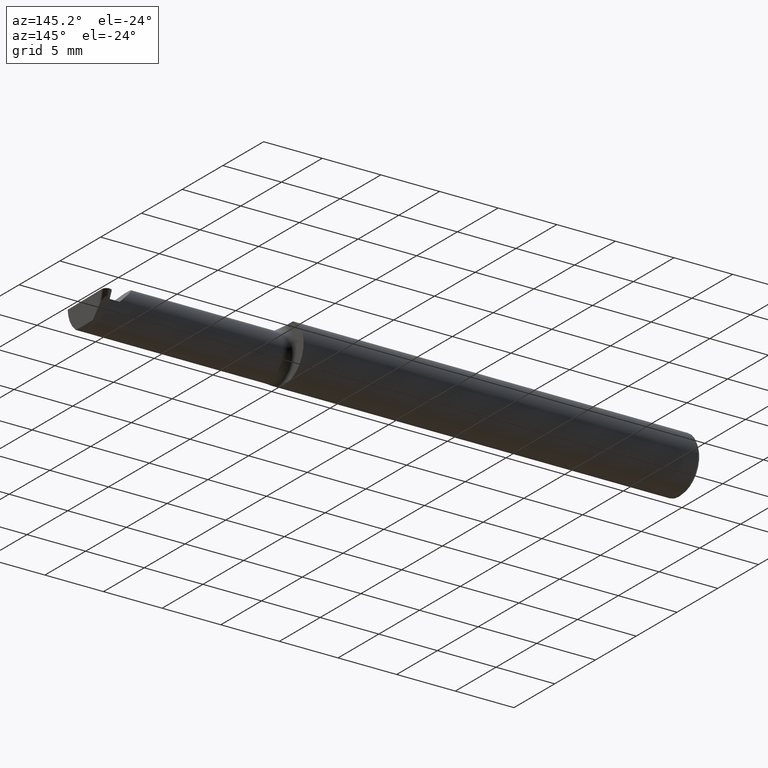
[diagram: clean part render]
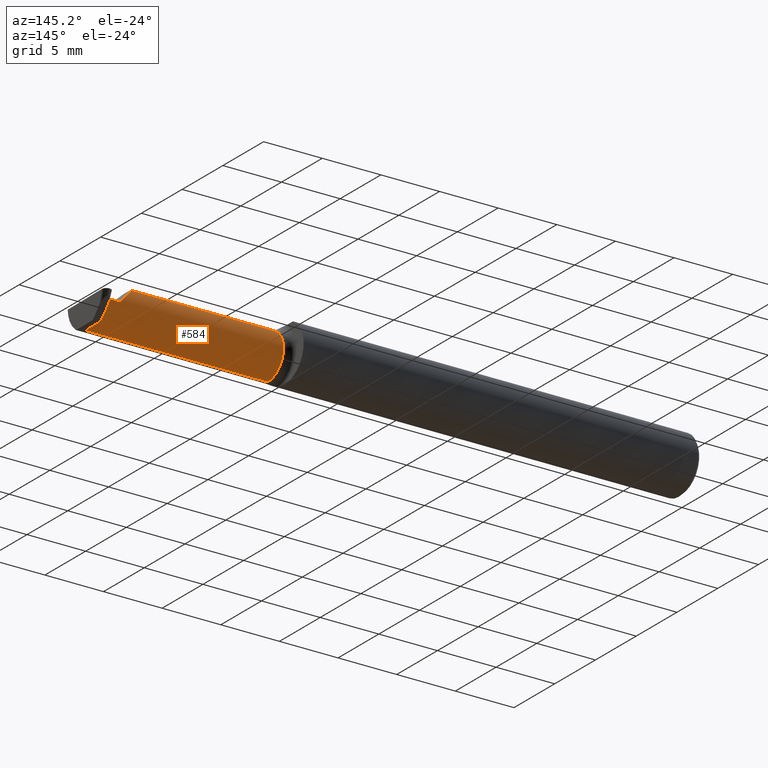
[diagram: same view with one face highlighted and labeled with its STEP entity id]
A machine part, auxiliary view. The second image highlights one B-rep face of the part: STEP entity #584.
In plain terms, the highlighted cylindrical surface (edge-blend (fillet) strip) has radius 1.905 mm, axis along (-1, -0, -0).
Its self-contained STEP definition (entity closure, byte-faithful):
#7 = VECTOR ( 'NONE', #655, 39.37007874015748143 ) ;
#26 = CARTESIAN_POINT ( 'NONE',  ( 1.359999999999999654, -0.04260000000000002673, -0.07500000000000002498 ) ) ;
#28 = CARTESIAN_POINT ( 'NONE',  ( 1.910000000000000142, 0.03239999999999997743, 8.143901214329935029E-17 ) ) ;
#36 = CARTESIAN_POINT ( 'NONE',  ( 1.964077367699730736, 0.03227820251299121090, -0.003487823687206109430 ) ) ;
#37 = CARTESIAN_POINT ( 'NONE',  ( 1.334999999999999742, -0.04260000000000003367, 0.07500000000000002498 ) ) ;
#38 = CARTESIAN_POINT ( 'NONE',  ( 1.834999999999999298, 0.001333982822017827988, 0.07500000000000002498 ) ) ;
#46 = ORIENTED_EDGE ( 'NONE', *, *, #86, .T. ) ;
#67 = DIRECTION ( 'NONE',  ( 1.000000000000000000, 0.000000000000000000, 0.000000000000000000 ) ) ;
#79 = DIRECTION ( 'NONE',  ( -1.000000000000000000, -0.000000000000000000, -0.000000000000000000 ) ) ;
#83 = VECTOR ( 'NONE', #79, 39.37007874015748143 ) ;
#86 = EDGE_CURVE ( 'NONE', #548, #541, #744, .T. ) ;
#88 = EDGE_CURVE ( 'NONE', #423, #241, #635, .T. ) ;
#91 = AXIS2_PLACEMENT_3D ( 'NONE', #512, #524, #341 ) ;
#99 = CARTESIAN_POINT ( 'NONE',  ( 1.910000000000000142, 0.03239999999999997743, 8.143901214329935029E-17 ) ) ;
#112 = CARTESIAN_POINT ( 'NONE',  ( 1.359999999999999654, -0.04260000000000003367, 0.07500000000000002498 ) ) ;
#120 = B_SPLINE_CURVE_WITH_KNOTS ( 'NONE', 3,
 ( #461, #36, #336, #271 ),
 .UNSPECIFIED., .F., .F.,
 ( 4, 4 ),
 ( 0.000000000000000000, 1.000000000000000000 ),
 .UNSPECIFIED. ) ;
#172 = LINE ( 'NONE', #37, #7 ) ;
#187 = DIRECTION ( 'NONE',  ( -1.000000000000000000, -0.000000000000000000, -0.000000000000000000 ) ) ;
#191 = CARTESIAN_POINT ( 'NONE',  ( 1.972966441847108454, -0.04260000000000003367, -0.07500000000000002498 ) ) ;
#208 = CARTESIAN_POINT ( 'NONE',  ( 1.334999999999999742, -0.04260000000000002673, -0.07500000000000002498 ) ) ;
#241 = VERTEX_POINT ( 'NONE', #26 ) ;
#271 = CARTESIAN_POINT ( 'NONE',  ( 1.964199165186739648, 0.03239999999999999825, 0.000000000000000000 ) ) ;
#279 = EDGE_LOOP ( 'NONE', ( #451, #730, #478, #791, #466, #46, #740, #363 ) ) ;
#289 = EDGE_CURVE ( 'NONE', #428, #241, #331, .T. ) ;
#299 = CARTESIAN_POINT ( 'NONE',  ( 1.834999999999999520, -0.04260000000000003367, 0.07500000000000002498 ) ) ;
#309 =( BOUNDED_CURVE ( )  B_SPLINE_CURVE ( 3, ( #525, #38, #583, #28 ),
 .UNSPECIFIED., .F., .F. ) 
 B_SPLINE_CURVE_WITH_KNOTS ( ( 4, 4 ),
 ( 0.000000000000000000, 1.570796326794896114 ),
 .UNSPECIFIED. ) 
 CURVE ( )  GEOMETRIC_REPRESENTATION_ITEM ( )  RATIONAL_B_SPLINE_CURVE ( ( 1.000000000000000000, 0.8047378541243650485, 0.8047378541243650485, 1.000000000000000000 ) ) 
 REPRESENTATION_ITEM ( '' )  );
#322 = EDGE_CURVE ( 'NONE', #611, #541, #120, .T. ) ;
#331 = CIRCLE ( 'NONE', #91, 0.07500000000000002498 ) ;
#336 = CARTESIAN_POINT ( 'NONE',  ( 1.964138266443235414, 0.03233910125649560457, -0.001743911843603054282 ) ) ;
#337 = FACE_OUTER_BOUND ( 'NONE', #279, .T. ) ;
#341 = DIRECTION ( 'NONE',  ( 0.000000000000000000, 0.000000000000000000, 1.000000000000000000 ) ) ;
#363 = ORIENTED_EDGE ( 'NONE', *, *, #371, .F. ) ;
#371 = EDGE_CURVE ( 'NONE', #725, #611, #535, .T. ) ;
#397 = CYLINDRICAL_SURFACE ( 'NONE', #514, 0.07500000000000002498 ) ;
#398 = EDGE_CURVE ( 'NONE', #412, #428, #172, .T. ) ;
#411 = CARTESIAN_POINT ( 'NONE',  ( 1.334999999999999742, 0.03221730376948593599, -0.005231735530821839987 ) ) ;
#412 = VERTEX_POINT ( 'NONE', #299 ) ;
#423 = VERTEX_POINT ( 'NONE', #191 ) ;
#428 = VERTEX_POINT ( 'NONE', #112 ) ;
#451 = ORIENTED_EDGE ( 'NONE', *, *, #718, .F. ) ;
#461 = CARTESIAN_POINT ( 'NONE',  ( 1.964016468956226502, 0.03221730376948682417, -0.005231735530809172169 ) ) ;
#466 = ORIENTED_EDGE ( 'NONE', *, *, #576, .T. ) ;
#478 = ORIENTED_EDGE ( 'NONE', *, *, #289, .F. ) ;
#499 =( BOUNDED_CURVE ( )  B_SPLINE_CURVE ( 3, ( #503, #639, #686, #698 ),
 .UNSPECIFIED., .F., .T. ) 
 B_SPLINE_CURVE_WITH_KNOTS ( ( 4, 4 ),
 ( 3.176499238629679756, 4.677482395344799926 ),
 .UNSPECIFIED. ) 
 CURVE ( )  GEOMETRIC_REPRESENTATION_ITEM ( )  RATIONAL_B_SPLINE_CURVE ( ( 1.000000000000000000, 0.8209024677461143060, 0.8209024677461143060, 1.000000000000000000 ) ) 
 REPRESENTATION_ITEM ( '' )  );
#503 = CARTESIAN_POINT ( 'NONE',  ( 1.972966441847108454, -0.04260000000000003367, -0.07500000000000002498 ) ) ;
#512 = CARTESIAN_POINT ( 'NONE',  ( 1.359999999999999654, -0.04260000000000003367, 0.000000000000000000 ) ) ;
#514 = AXIS2_PLACEMENT_3D ( 'NONE', #649, #187, #807 ) ;
#517 = VECTOR ( 'NONE', #618, 39.37007874015748143 ) ;
#524 = DIRECTION ( 'NONE',  ( -1.000000000000000000, -0.000000000000000000, -0.000000000000000000 ) ) ;
#525 = CARTESIAN_POINT ( 'NONE',  ( 1.834999999999999520, -0.04260000000000003367, 0.07500000000000002498 ) ) ;
#535 = LINE ( 'NONE', #411, #517 ) ;
#541 = VERTEX_POINT ( 'NONE', #596 ) ;
#548 = VERTEX_POINT ( 'NONE', #99 ) ;
#576 = EDGE_CURVE ( 'NONE', #412, #548, #309, .T. ) ;
#583 = CARTESIAN_POINT ( 'NONE',  ( 1.866066017177981706, 0.03239999999999996355, 0.04393398282201791544 ) ) ;
#584 = ADVANCED_FACE ( 'NONE', ( #337 ), #397, .T. ) ;
#596 = CARTESIAN_POINT ( 'NONE',  ( 1.964199165186739648, 0.03239999999999999825, 0.000000000000000000 ) ) ;
#610 = CARTESIAN_POINT ( 'NONE',  ( 1.964016468956226502, 0.03221730376948682417, -0.005231735530809172169 ) ) ;
#611 = VERTEX_POINT ( 'NONE', #610 ) ;
#618 = DIRECTION ( 'NONE',  ( -1.000000000000000000, -0.000000000000000000, -0.000000000000000000 ) ) ;
#635 = LINE ( 'NONE', #208, #83 ) ;
#637 = CARTESIAN_POINT ( 'NONE',  ( 1.970397471987413995, 0.03221730376948542252, -0.005231735530809524318 ) ) ;
#639 = CARTESIAN_POINT ( 'NONE',  ( 1.972914956890062355, -0.001060451341131634457, -0.07500000000000001110 ) ) ;
#649 = CARTESIAN_POINT ( 'NONE',  ( 1.334999999999999742, -0.04260000000000003367, 0.000000000000000000 ) ) ;
#655 = DIRECTION ( 'NONE',  ( -1.000000000000000000, -0.000000000000000000, -0.000000000000000000 ) ) ;
#675 = CARTESIAN_POINT ( 'NONE',  ( 1.334999999999999742, 0.03239999999999997743, 8.143901214329935029E-17 ) ) ;
#686 = CARTESIAN_POINT ( 'NONE',  ( 1.971871808257659398, 0.02931965133412148608, -0.04667009593691545666 ) ) ;
#698 = CARTESIAN_POINT ( 'NONE',  ( 1.970397471987413995, 0.03221730376948542252, -0.005231735530809524318 ) ) ;
#718 = EDGE_CURVE ( 'NONE', #423, #725, #499, .T. ) ;
#725 = VERTEX_POINT ( 'NONE', #637 ) ;
#730 = ORIENTED_EDGE ( 'NONE', *, *, #88, .T. ) ;
#740 = ORIENTED_EDGE ( 'NONE', *, *, #322, .F. ) ;
#744 = LINE ( 'NONE', #675, #748 ) ;
#748 = VECTOR ( 'NONE', #67, 39.37007874015748143 ) ;
#791 = ORIENTED_EDGE ( 'NONE', *, *, #398, .F. ) ;
#807 = DIRECTION ( 'NONE',  ( 0.000000000000000000, 0.000000000000000000, 1.000000000000000000 ) ) ;